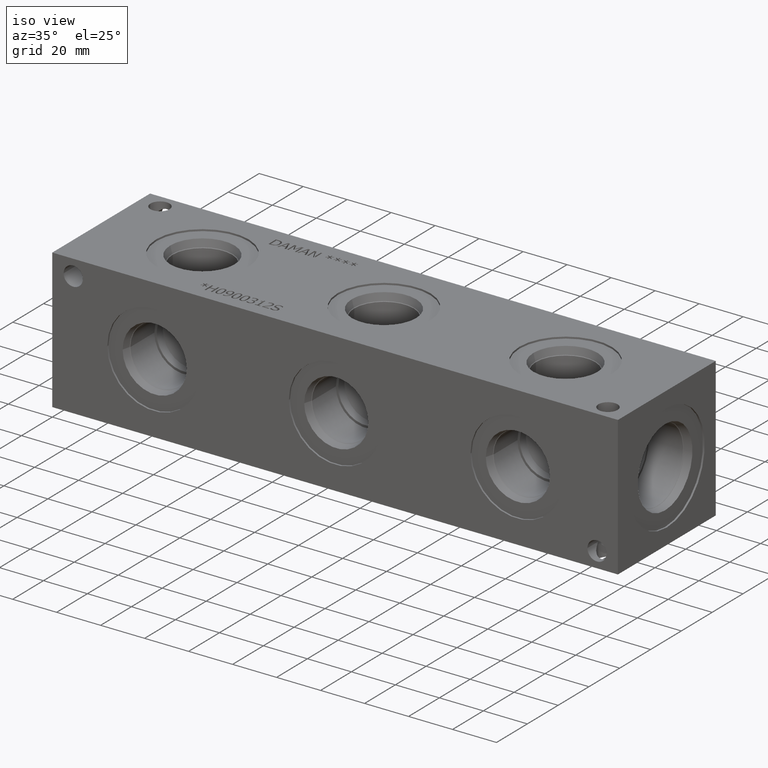
[diagram: clean part render]
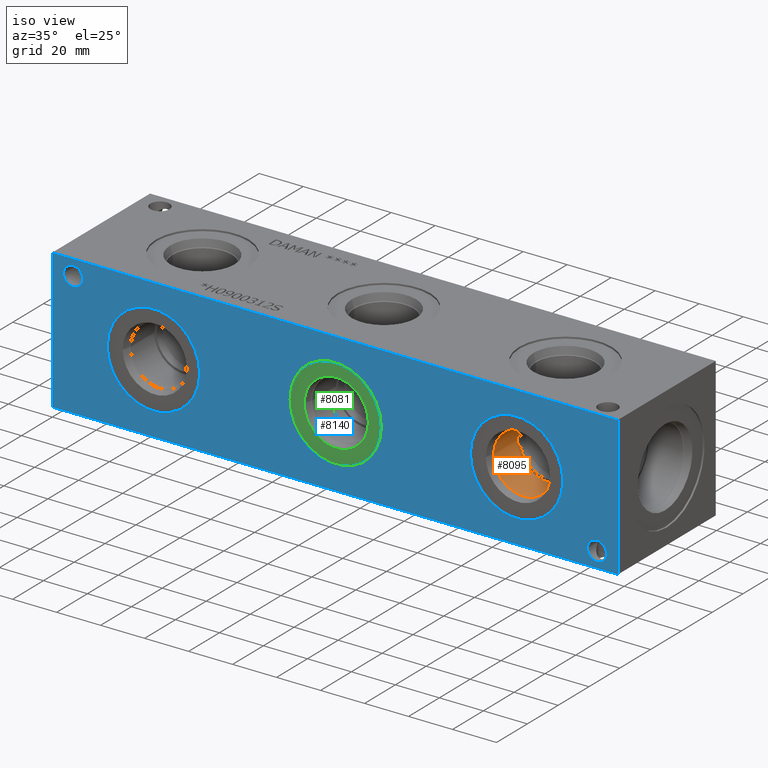
[diagram: same view with three faces highlighted in distinct colors, each labeled with its STEP entity id]
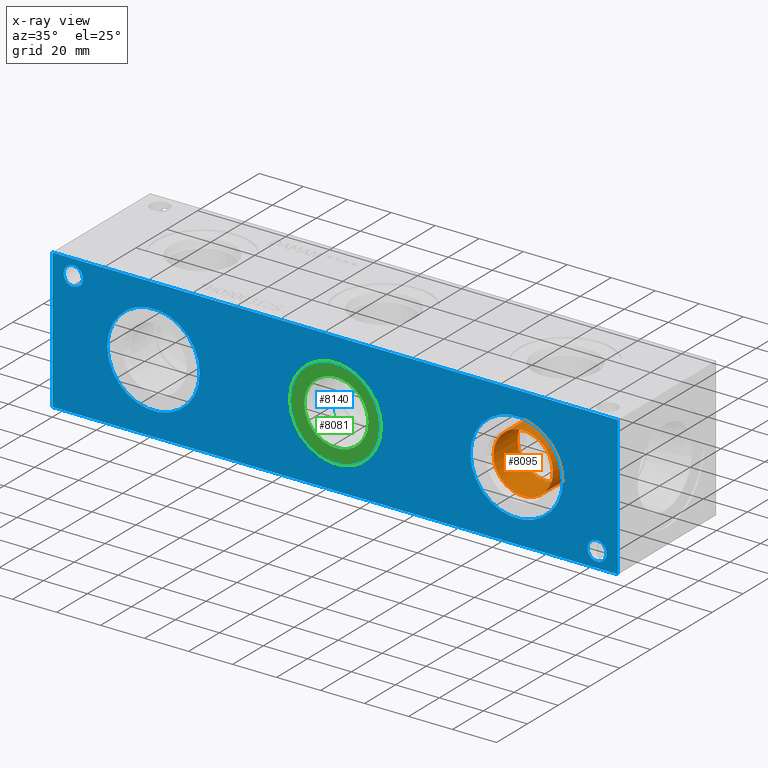
[diagram: x-ray of the same camera — body ghosted, the three highlighted faces saturated]
A machine part, iso view with three faces highlighted in distinct colors.
The next image is the same camera in x-ray (body ghosted, the three faces saturated) — at least one of them is partly hidden behind the body in this view.
Their STEP definitions:

[orange] entity #8095 — the highlighted cylindrical surface (bore or boss wall) has radius 13.495 mm, axis along (0, -1, 0).
#28=ELLIPSE('',#8520,19.0848120242249,13.495);
#55=CYLINDRICAL_SURFACE('',#8519,13.495);
#171=CIRCLE('',#8473,13.495);
#193=CIRCLE('',#8516,13.495);
#194=CIRCLE('',#8517,13.495);
#1020=FACE_OUTER_BOUND('',#1472,.T.);
#1472=EDGE_LOOP('',(#6928,#6929,#6930,#6931,#6932,#6933));
#2238=LINE('',#13963,#2974);
#2974=VECTOR('',#10061,13.495);
#3669=VERTEX_POINT('',#13743);
#3710=VERTEX_POINT('',#13952);
#3712=VERTEX_POINT('',#13955);
#3713=VERTEX_POINT('',#13957);
#4752=EDGE_CURVE('',#3669,#3669,#171,.T.);
#4806=EDGE_CURVE('',#3710,#3712,#193,.T.);
#4807=EDGE_CURVE('',#3712,#3713,#194,.T.);
#4810=EDGE_CURVE('',#3669,#3712,#2238,.T.);
#4811=EDGE_CURVE('',#3713,#3710,#28,.T.);
#6928=ORIENTED_EDGE('',*,*,#4752,.T.);
#6929=ORIENTED_EDGE('',*,*,#4810,.T.);
#6930=ORIENTED_EDGE('',*,*,#4806,.F.);
#6931=ORIENTED_EDGE('',*,*,#4811,.F.);
#6932=ORIENTED_EDGE('',*,*,#4807,.F.);
#6933=ORIENTED_EDGE('',*,*,#4810,.F.);
#8095=ADVANCED_FACE('',(#1020),#55,.F.);
#8473=AXIS2_PLACEMENT_3D('',#13745,#9955,#9956);
#8516=AXIS2_PLACEMENT_3D('',#13956,#10052,#10053);
#8517=AXIS2_PLACEMENT_3D('',#13958,#10054,#10055);
#8519=AXIS2_PLACEMENT_3D('',#13962,#10059,#10060);
#8520=AXIS2_PLACEMENT_3D('',#13964,#10062,#10063);
#9955=DIRECTION('center_axis',(0.,-1.,0.));
#9956=DIRECTION('ref_axis',(1.,0.,0.));
#10052=DIRECTION('center_axis',(0.,-1.,0.));
#10053=DIRECTION('ref_axis',(1.,0.,0.));
#10054=DIRECTION('center_axis',(0.,-1.,0.));
#10055=DIRECTION('ref_axis',(1.,0.,0.));
#10059=DIRECTION('center_axis',(0.,-1.,0.));
#10060=DIRECTION('ref_axis',(1.,0.,0.));
#10061=DIRECTION('',(0.,1.,0.));
#10062=DIRECTION('center_axis',(0.,-0.707106781186547,-0.707106781186548));
#10063=DIRECTION('ref_axis',(0.,-0.707106781186548,0.707106781186548));
#13743=CARTESIAN_POINT('',(197.6298,4.28500000000001,31.75));
#13745=CARTESIAN_POINT('Origin',(211.1248,4.28500000000001,31.75));
#13952=CARTESIAN_POINT('',(204.784059803461,19.8374,43.6626));
#13955=CARTESIAN_POINT('',(197.6298,19.8374,31.75));
#13956=CARTESIAN_POINT('Origin',(211.1248,19.8374,31.75));
#13957=CARTESIAN_POINT('',(217.465540196539,19.8374,43.6626));
#13958=CARTESIAN_POINT('Origin',(211.1248,19.8374,31.75));
#13962=CARTESIAN_POINT('Origin',(211.1248,9.9187,31.75));
#13963=CARTESIAN_POINT('',(197.6298,9.9187,31.75));
#13964=CARTESIAN_POINT('Origin',(211.1248,31.75,31.75));

[blue] entity #8140 — the highlighted planar face has unit normal (0, -1, 0).
#155=CIRCLE('',#8439,4.3688);
#156=CIRCLE('',#8440,4.3688);
#158=CIRCLE('',#8449,4.3688);
#159=CIRCLE('',#8450,4.3688);
#161=CIRCLE('',#8459,21.0185);
#162=CIRCLE('',#8460,21.0185);
#172=CIRCLE('',#8475,21.0185);
#173=CIRCLE('',#8476,21.0185);
#205=CIRCLE('',#8540,21.0185);
#206=CIRCLE('',#8541,21.0185);
#301=FACE_BOUND('',#1526,.T.);
#302=FACE_BOUND('',#1527,.T.);
#303=FACE_BOUND('',#1528,.T.);
#304=FACE_BOUND('',#1529,.T.);
#305=FACE_BOUND('',#1530,.T.);
#1065=FACE_OUTER_BOUND('',#1525,.T.);
#1525=EDGE_LOOP('',(#7161,#7162,#7163,#7164));
#1526=EDGE_LOOP('',(#7165,#7166));
#1527=EDGE_LOOP('',(#7167,#7168));
#1528=EDGE_LOOP('',(#7169,#7170));
#1529=EDGE_LOOP('',(#7171,#7172));
#1530=EDGE_LOOP('',(#7173,#7174));
#1817=LINE('',#12626,#2553);
#2264=LINE('',#14144,#3000);
#2269=LINE('',#14153,#3005);
#2270=LINE('',#14155,#3006);
#2553=VECTOR('',#9056,10.);
#3000=VECTOR('',#10297,10.);
#3005=VECTOR('',#10306,10.);
#3006=VECTOR('',#10309,10.);
#3331=VERTEX_POINT('',#12624);
#3332=VERTEX_POINT('',#12625);
#3649=VERTEX_POINT('',#13680);
#3650=VERTEX_POINT('',#13681);
#3654=VERTEX_POINT('',#13698);
#3655=VERTEX_POINT('',#13699);
#3659=VERTEX_POINT('',#13716);
#3660=VERTEX_POINT('',#13717);
#3670=VERTEX_POINT('',#13747);
#3671=VERTEX_POINT('',#13748);
#3721=VERTEX_POINT('',#13993);
#3722=VERTEX_POINT('',#13994);
#3764=VERTEX_POINT('',#14142);
#3766=VERTEX_POINT('',#14151);
#4253=EDGE_CURVE('',#3331,#3332,#1817,.T.);
#4718=EDGE_CURVE('',#3649,#3650,#155,.T.);
#4719=EDGE_CURVE('',#3650,#3649,#156,.T.);
#4728=EDGE_CURVE('',#3654,#3655,#158,.T.);
#4729=EDGE_CURVE('',#3655,#3654,#159,.T.);
#4738=EDGE_CURVE('',#3659,#3660,#161,.T.);
#4739=EDGE_CURVE('',#3660,#3659,#162,.T.);
#4753=EDGE_CURVE('',#3670,#3671,#172,.T.);
#4754=EDGE_CURVE('',#3671,#3670,#173,.T.);
#4826=EDGE_CURVE('',#3721,#3722,#205,.T.);
#4827=EDGE_CURVE('',#3722,#3721,#206,.T.);
#4899=EDGE_CURVE('',#3764,#3331,#2264,.T.);
#4904=EDGE_CURVE('',#3766,#3332,#2269,.T.);
#4905=EDGE_CURVE('',#3764,#3766,#2270,.T.);
#7161=ORIENTED_EDGE('',*,*,#4905,.T.);
#7162=ORIENTED_EDGE('',*,*,#4904,.T.);
#7163=ORIENTED_EDGE('',*,*,#4253,.F.);
#7164=ORIENTED_EDGE('',*,*,#4899,.F.);
#7165=ORIENTED_EDGE('',*,*,#4718,.T.);
#7166=ORIENTED_EDGE('',*,*,#4719,.T.);
#7167=ORIENTED_EDGE('',*,*,#4728,.T.);
#7168=ORIENTED_EDGE('',*,*,#4729,.T.);
#7169=ORIENTED_EDGE('',*,*,#4738,.T.);
#7170=ORIENTED_EDGE('',*,*,#4739,.T.);
#7171=ORIENTED_EDGE('',*,*,#4753,.T.);
#7172=ORIENTED_EDGE('',*,*,#4754,.T.);
#7173=ORIENTED_EDGE('',*,*,#4826,.T.);
#7174=ORIENTED_EDGE('',*,*,#4827,.T.);
#7412=PLANE('',#8627);
#8140=ADVANCED_FACE('',(#1065,#301,#302,#303,#304,#305),#7412,.T.);
#8439=AXIS2_PLACEMENT_3D('',#13682,#9877,#9878);
#8440=AXIS2_PLACEMENT_3D('',#13683,#9879,#9880);
#8449=AXIS2_PLACEMENT_3D('',#13700,#9900,#9901);
#8450=AXIS2_PLACEMENT_3D('',#13701,#9902,#9903);
#8459=AXIS2_PLACEMENT_3D('',#13718,#9923,#9924);
#8460=AXIS2_PLACEMENT_3D('',#13719,#9925,#9926);
#8475=AXIS2_PLACEMENT_3D('',#13749,#9959,#9960);
#8476=AXIS2_PLACEMENT_3D('',#13750,#9961,#9962);
#8540=AXIS2_PLACEMENT_3D('',#13995,#10105,#10106);
#8541=AXIS2_PLACEMENT_3D('',#13996,#10107,#10108);
#8627=AXIS2_PLACEMENT_3D('',#14154,#10307,#10308);
#9056=DIRECTION('',(1.,0.,0.));
#9877=DIRECTION('center_axis',(0.,1.,0.));
#9878=DIRECTION('ref_axis',(1.,0.,0.));
#9879=DIRECTION('center_axis',(0.,1.,0.));
#9880=DIRECTION('ref_axis',(1.,0.,0.));
#9900=DIRECTION('center_axis',(0.,1.,0.));
#9901=DIRECTION('ref_axis',(1.,0.,0.));
#9902=DIRECTION('center_axis',(0.,1.,0.));
#9903=DIRECTION('ref_axis',(1.,0.,0.));
#9923=DIRECTION('center_axis',(0.,1.,0.));
#9924=DIRECTION('ref_axis',(1.,0.,0.));
#9925=DIRECTION('center_axis',(0.,1.,0.));
#9926=DIRECTION('ref_axis',(1.,0.,0.));
#9959=DIRECTION('center_axis',(0.,1.,0.));
#9960=DIRECTION('ref_axis',(1.,0.,0.));
#9961=DIRECTION('center_axis',(0.,1.,0.));
#9962=DIRECTION('ref_axis',(1.,0.,0.));
#10105=DIRECTION('center_axis',(0.,1.,0.));
#10106=DIRECTION('ref_axis',(1.,0.,0.));
#10107=DIRECTION('center_axis',(0.,1.,0.));
#10108=DIRECTION('ref_axis',(1.,0.,0.));
#10297=DIRECTION('',(0.,0.,1.));
#10306=DIRECTION('',(0.,0.,1.));
#10307=DIRECTION('center_axis',(0.,-1.,0.));
#10308=DIRECTION('ref_axis',(1.,0.,0.));
#10309=DIRECTION('',(1.,0.,0.));
#12624=CARTESIAN_POINT('',(0.,0.,63.5));
#12625=CARTESIAN_POINT('',(257.175,0.,63.5));
#12626=CARTESIAN_POINT('',(0.,0.,63.5));
#13680=CARTESIAN_POINT('',(252.0188,0.,7.1374));
#13681=CARTESIAN_POINT('',(243.2812,0.,7.1374));
#13682=CARTESIAN_POINT('Origin',(247.65,0.,7.1374));
#13683=CARTESIAN_POINT('Origin',(247.65,0.,7.1374));
#13698=CARTESIAN_POINT('',(13.8938,0.,56.3626));
#13699=CARTESIAN_POINT('',(5.1562,0.,56.3626));
#13700=CARTESIAN_POINT('Origin',(9.525,0.,56.3626));
#13701=CARTESIAN_POINT('Origin',(9.525,0.,56.3626));
#13716=CARTESIAN_POINT('',(232.1433,0.,31.75));
#13717=CARTESIAN_POINT('',(190.1063,0.,31.75));
#13718=CARTESIAN_POINT('Origin',(211.1248,0.,31.75));
#13719=CARTESIAN_POINT('Origin',(211.1248,0.,31.75));
#13747=CARTESIAN_POINT('',(149.5933,0.,31.75));
#13748=CARTESIAN_POINT('',(107.5563,0.,31.75));
#13749=CARTESIAN_POINT('Origin',(128.5748,0.,31.75));
#13750=CARTESIAN_POINT('Origin',(128.5748,0.,31.75));
#13993=CARTESIAN_POINT('',(67.0433,0.,31.75));
#13994=CARTESIAN_POINT('',(25.0063,0.,31.75));
#13995=CARTESIAN_POINT('Origin',(46.0248,0.,31.75));
#13996=CARTESIAN_POINT('Origin',(46.0248,0.,31.75));
#14142=CARTESIAN_POINT('',(0.,0.,0.));
#14144=CARTESIAN_POINT('',(0.,0.,0.));
#14151=CARTESIAN_POINT('',(257.175,0.,0.));
#14153=CARTESIAN_POINT('',(257.175,0.,0.));
#14154=CARTESIAN_POINT('Origin',(0.,0.,0.));
#14155=CARTESIAN_POINT('',(0.,0.,0.));

[green] entity #8081 — the highlighted planar face has unit normal (0, 1, 0).
#174=CIRCLE('',#8477,21.0185);
#175=CIRCLE('',#8478,21.0185);
#176=CIRCLE('',#8480,14.5923);
#177=CIRCLE('',#8481,14.5923);
#292=FACE_BOUND('',#1458,.T.);
#1006=FACE_OUTER_BOUND('',#1457,.T.);
#1457=EDGE_LOOP('',(#6854,#6855));
#1458=EDGE_LOOP('',(#6856,#6857));
#3672=VERTEX_POINT('',#13751);
#3673=VERTEX_POINT('',#13753);
#3674=VERTEX_POINT('',#13757);
#3675=VERTEX_POINT('',#13758);
#4756=EDGE_CURVE('',#3672,#3673,#174,.T.);
#4757=EDGE_CURVE('',#3673,#3672,#175,.T.);
#4758=EDGE_CURVE('',#3674,#3675,#176,.T.);
#4759=EDGE_CURVE('',#3675,#3674,#177,.T.);
#6854=ORIENTED_EDGE('',*,*,#4757,.F.);
#6855=ORIENTED_EDGE('',*,*,#4756,.F.);
#6856=ORIENTED_EDGE('',*,*,#4758,.T.);
#6857=ORIENTED_EDGE('',*,*,#4759,.T.);
#7398=PLANE('',#8479);
#8081=ADVANCED_FACE('',(#1006,#292),#7398,.F.);
#8477=AXIS2_PLACEMENT_3D('',#13754,#9964,#9965);
#8478=AXIS2_PLACEMENT_3D('',#13755,#9966,#9967);
#8479=AXIS2_PLACEMENT_3D('',#13756,#9968,#9969);
#8480=AXIS2_PLACEMENT_3D('',#13759,#9970,#9971);
#8481=AXIS2_PLACEMENT_3D('',#13760,#9972,#9973);
#9964=DIRECTION('center_axis',(0.,1.,0.));
#9965=DIRECTION('ref_axis',(1.,0.,0.));
#9966=DIRECTION('center_axis',(0.,1.,0.));
#9967=DIRECTION('ref_axis',(1.,0.,0.));
#9968=DIRECTION('center_axis',(0.,1.,0.));
#9969=DIRECTION('ref_axis',(0.,0.,1.));
#9970=DIRECTION('center_axis',(0.,1.,0.));
#9971=DIRECTION('ref_axis',(1.,0.,0.));
#9972=DIRECTION('center_axis',(0.,1.,0.));
#9973=DIRECTION('ref_axis',(1.,0.,0.));
#13751=CARTESIAN_POINT('',(107.5563,0.7874,31.75));
#13753=CARTESIAN_POINT('',(149.5933,0.7874,31.75));
#13754=CARTESIAN_POINT('Origin',(128.5748,0.7874,31.75));
#13755=CARTESIAN_POINT('Origin',(128.5748,0.7874,31.75));
#13756=CARTESIAN_POINT('Origin',(143.1671,0.7874,31.75));
#13757=CARTESIAN_POINT('',(143.1671,0.7874,31.75));
#13758=CARTESIAN_POINT('',(113.9825,0.7874,31.75));
#13759=CARTESIAN_POINT('Origin',(128.5748,0.7874,31.75));
#13760=CARTESIAN_POINT('Origin',(128.5748,0.7874,31.75));